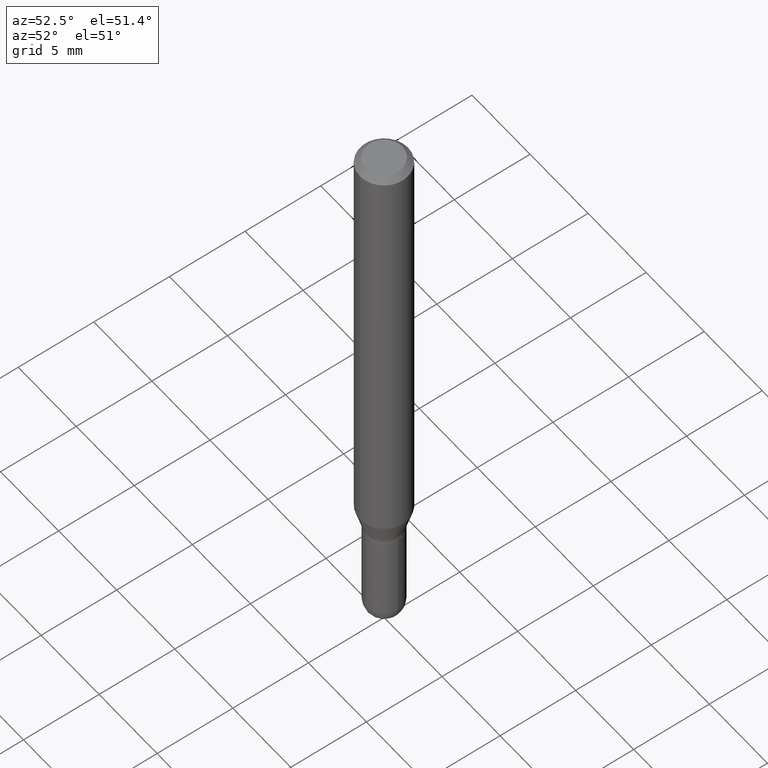
[diagram: clean part render]
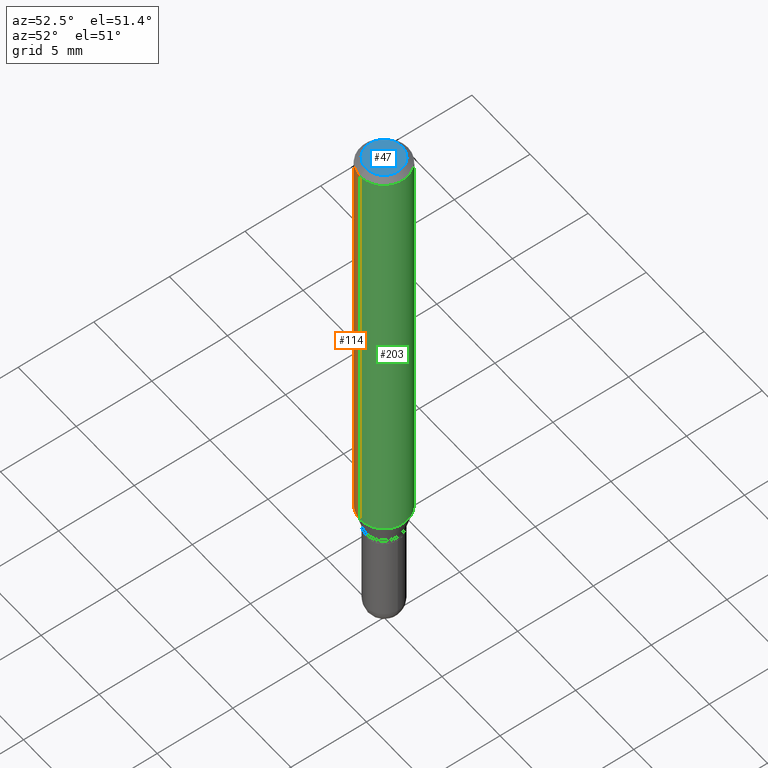
[diagram: same view with three faces highlighted in distinct colors, each labeled with its STEP entity id]
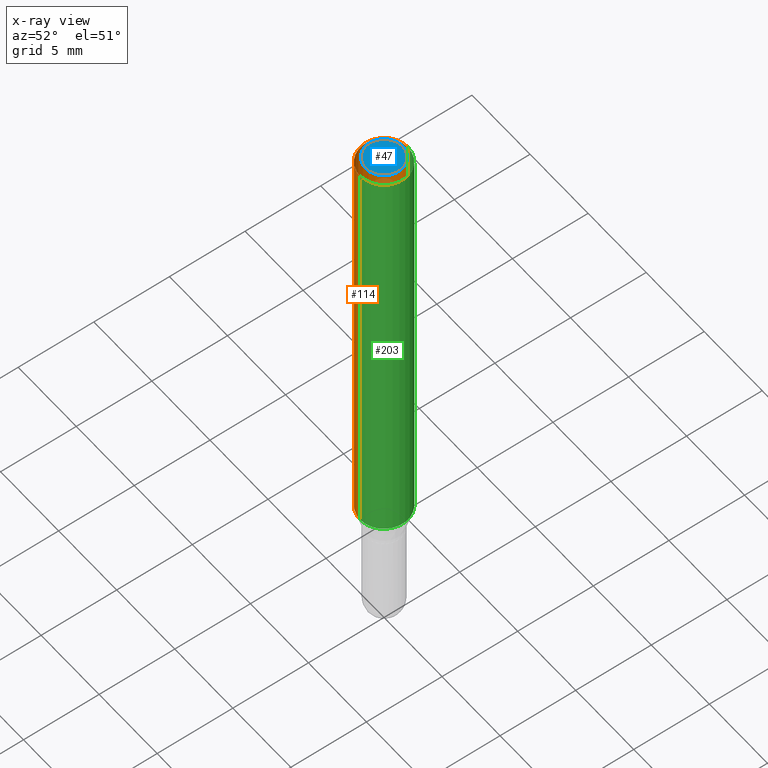
[diagram: x-ray of the same camera — body ghosted, the three highlighted faces saturated]
A machine part, auxiliary view with three faces highlighted in distinct colors.
The next image is the same camera in x-ray (body ghosted, the three faces saturated) — at least one of them is partly hidden behind the body in this view.
Their STEP definitions:

[orange] entity #114 — the highlighted cylindrical surface (edge-blend (fillet) strip) has radius 1.5875 mm, axis along (-0, 0, 1).
#1 = VERTEX_POINT ( 'NONE', #377 ) ;
#19 = ORIENTED_EDGE ( 'NONE', *, *, #40, .F. ) ;
#35 = CARTESIAN_POINT ( 'NONE',  ( 2.815349723061568800E-29, -4.019822575914692345E-15, -1.151287187078898322 ) ) ;
#40 = EDGE_CURVE ( 'NONE', #193, #150, #48, .T. ) ;
#48 = CIRCLE ( 'NONE', #196, 0.06250000000000000000 ) ;
#50 = ORIENTED_EDGE ( 'NONE', *, *, #317, .T. ) ;
#64 = CARTESIAN_POINT ( 'NONE',  ( 4.440892098500625669E-16, 0.06250000000000000000, -2.182243612318172272E-16 ) ) ;
#68 = ORIENTED_EDGE ( 'NONE', *, *, #382, .F. ) ;
#91 = DIRECTION ( 'NONE',  ( -6.982962677686265922E-15, -1.000000000000000000, 4.370956789862821150E-15 ) ) ;
#95 = LINE ( 'NONE', #64, #221 ) ;
#114 = ADVANCED_FACE ( 'NONE', ( #162 ), #126, .T. ) ;
#122 = DIRECTION ( 'NONE',  ( -6.982962677686265922E-15, -1.000000000000000000, 3.491589779709075635E-15 ) ) ;
#126 = CYLINDRICAL_SURFACE ( 'NONE', #220, 0.06250000000000000000 ) ;
#132 = DIRECTION ( 'NONE',  ( -2.445393082333184386E-29, 3.491589779709075635E-15, 1.000000000000000000 ) ) ;
#150 = VERTEX_POINT ( 'NONE', #477 ) ;
#162 = FACE_OUTER_BOUND ( 'NONE', #347, .T. ) ;
#172 = EDGE_CURVE ( 'NONE', #1, #459, #326, .T. ) ;
#193 = VERTEX_POINT ( 'NONE', #285 ) ;
#195 = VECTOR ( 'NONE', #132, 39.37007874015748143 ) ;
#196 = AXIS2_PLACEMENT_3D ( 'NONE', #233, #381, #345 ) ;
#199 = DIRECTION ( 'NONE',  ( -2.445393082333184106E-29, 3.491589779709075635E-15, 1.000000000000000000 ) ) ;
#220 = AXIS2_PLACEMENT_3D ( 'NONE', #280, #512, #122 ) ;
#221 = VECTOR ( 'NONE', #413, 39.37007874015748143 ) ;
#233 = CARTESIAN_POINT ( 'NONE',  ( 3.668089623499778454E-31, -5.237384669563616460E-17, -0.01500000000000000812 ) ) ;
#280 = CARTESIAN_POINT ( 'NONE',  ( 0.000000000000000000, 0.000000000000000000, 0.000000000000000000 ) ) ;
#281 = ORIENTED_EDGE ( 'NONE', *, *, #172, .T. ) ;
#285 = CARTESIAN_POINT ( 'NONE',  ( 4.440892098500909166E-16, 0.06249999999999995143, -0.01500000000000022669 ) ) ;
#317 = EDGE_CURVE ( 'NONE', #459, #150, #420, .T. ) ;
#326 = CIRCLE ( 'NONE', #339, 0.06250000000000000000 ) ;
#339 = AXIS2_PLACEMENT_3D ( 'NONE', #35, #199, #91 ) ;
#345 = DIRECTION ( 'NONE',  ( -6.982962677686265922E-15, -1.000000000000000000, 3.483106191921935554E-15 ) ) ;
#347 = EDGE_LOOP ( 'NONE', ( #68, #281, #50, #19 ) ) ;
#377 = CARTESIAN_POINT ( 'NONE',  ( 4.440892098500906207E-16, 0.06249999999999597544, -1.151287187078898766 ) ) ;
#379 = CARTESIAN_POINT ( 'NONE',  ( -4.364351673553635169E-16, -0.06250000000000402456, -1.151287187078898100 ) ) ;
#381 = DIRECTION ( 'NONE',  ( -2.445393082333184106E-29, 3.491589779709075635E-15, 1.000000000000000000 ) ) ;
#382 = EDGE_CURVE ( 'NONE', #1, #193, #95, .T. ) ;
#413 = DIRECTION ( 'NONE',  ( -2.445393082333184386E-29, 3.491589779709075635E-15, 1.000000000000000000 ) ) ;
#420 = LINE ( 'NONE', #499, #195 ) ;
#459 = VERTEX_POINT ( 'NONE', #379 ) ;
#477 = CARTESIAN_POINT ( 'NONE',  ( -4.364351673553912750E-16, -0.06250000000000005551, -0.01499999999999979128 ) ) ;
#499 = CARTESIAN_POINT ( 'NONE',  ( -4.364351673553916201E-16, -0.06250000000000000000, 2.182243612318172272E-16 ) ) ;
#512 = DIRECTION ( 'NONE',  ( -2.445393082333184106E-29, 3.491589779709075635E-15, 1.000000000000000000 ) ) ;

[blue] entity #47 — the highlighted planar face has unit normal (0, -0, -1).
#3 = CARTESIAN_POINT ( 'NONE',  ( -3.773273898774340269E-16, -0.04749999999999999362, 1.569953458854816609E-16 ) ) ;
#11 = AXIS2_PLACEMENT_3D ( 'NONE', #14, #457, #176 ) ;
#14 = CARTESIAN_POINT ( 'NONE',  ( 2.165436816131405591E-46, -3.091861635838232018E-32, -8.855168650699427931E-18 ) ) ;
#26 = AXIS2_PLACEMENT_3D ( 'NONE', #392, #273, #461 ) ;
#33 = CIRCLE ( 'NONE', #11, 0.04749999999999999362 ) ;
#47 = ADVANCED_FACE ( 'NONE', ( #475 ), #118, .F. ) ;
#56 = CARTESIAN_POINT ( 'NONE',  ( 2.165436816131405591E-46, -3.091861635838232018E-32, -8.855168650699427931E-18 ) ) ;
#96 = CARTESIAN_POINT ( 'NONE',  ( 3.840629472727447874E-16, 0.04749999999999999362, -1.747056831868805136E-16 ) ) ;
#118 = PLANE ( 'NONE',  #26 ) ;
#176 = DIRECTION ( 'NONE',  ( -6.982962677686266711E-15, -1.000000000000000000, 3.491589779709075635E-15 ) ) ;
#186 = CIRCLE ( 'NONE', #342, 0.04749999999999999362 ) ;
#224 = VERTEX_POINT ( 'NONE', #3 ) ;
#226 = VERTEX_POINT ( 'NONE', #96 ) ;
#247 = EDGE_LOOP ( 'NONE', ( #482, #303 ) ) ;
#273 = DIRECTION ( 'NONE',  ( 2.445393082333183826E-29, -3.491589779709075635E-15, -1.000000000000000000 ) ) ;
#301 = EDGE_CURVE ( 'NONE', #226, #224, #33, .T. ) ;
#303 = ORIENTED_EDGE ( 'NONE', *, *, #354, .T. ) ;
#342 = AXIS2_PLACEMENT_3D ( 'NONE', #56, #416, #453 ) ;
#354 = EDGE_CURVE ( 'NONE', #224, #226, #186, .T. ) ;
#392 = CARTESIAN_POINT ( 'NONE',  ( 3.316907271900976096E-16, 0.04749999999999999362, -1.702780988615308066E-16 ) ) ;
#416 = DIRECTION ( 'NONE',  ( -2.445393082333184106E-29, 3.491589779709075635E-15, 1.000000000000000000 ) ) ;
#453 = DIRECTION ( 'NONE',  ( -6.982962677686266711E-15, -1.000000000000000000, 3.491589779709075635E-15 ) ) ;
#457 = DIRECTION ( 'NONE',  ( -2.445393082333184106E-29, 3.491589779709075635E-15, 1.000000000000000000 ) ) ;
#461 = DIRECTION ( 'NONE',  ( 6.982962677686265922E-15, 1.000000000000000000, -3.491589779709075635E-15 ) ) ;
#475 = FACE_OUTER_BOUND ( 'NONE', #247, .T. ) ;
#482 = ORIENTED_EDGE ( 'NONE', *, *, #301, .T. ) ;

[green] entity #203 — the highlighted cylindrical surface (edge-blend (fillet) strip) has radius 1.5875 mm, axis along (-0, 0, 1).
#1 = VERTEX_POINT ( 'NONE', #377 ) ;
#6 = CARTESIAN_POINT ( 'NONE',  ( 2.815349723061568800E-29, -4.019822575914692345E-15, -1.151287187078898322 ) ) ;
#12 = DIRECTION ( 'NONE',  ( -6.982962677686265922E-15, -1.000000000000000000, 3.483106191921935554E-15 ) ) ;
#43 = DIRECTION ( 'NONE',  ( -6.982962677686265922E-15, -1.000000000000000000, 3.491589779709075635E-15 ) ) ;
#64 = CARTESIAN_POINT ( 'NONE',  ( 4.440892098500625669E-16, 0.06250000000000000000, -2.182243612318172272E-16 ) ) ;
#95 = LINE ( 'NONE', #64, #221 ) ;
#110 = ORIENTED_EDGE ( 'NONE', *, *, #376, .F. ) ;
#132 = DIRECTION ( 'NONE',  ( -2.445393082333184386E-29, 3.491589779709075635E-15, 1.000000000000000000 ) ) ;
#134 = CARTESIAN_POINT ( 'NONE',  ( 3.668089623499778454E-31, -5.237384669563616460E-17, -0.01500000000000000812 ) ) ;
#150 = VERTEX_POINT ( 'NONE', #477 ) ;
#166 = CARTESIAN_POINT ( 'NONE',  ( 0.000000000000000000, 0.000000000000000000, 0.000000000000000000 ) ) ;
#168 = DIRECTION ( 'NONE',  ( -6.982962677686265922E-15, -1.000000000000000000, 4.370956789862821150E-15 ) ) ;
#180 = EDGE_CURVE ( 'NONE', #459, #1, #491, .T. ) ;
#193 = VERTEX_POINT ( 'NONE', #285 ) ;
#195 = VECTOR ( 'NONE', #132, 39.37007874015748143 ) ;
#203 = ADVANCED_FACE ( 'NONE', ( #275 ), #451, .T. ) ;
#221 = VECTOR ( 'NONE', #413, 39.37007874015748143 ) ;
#227 = AXIS2_PLACEMENT_3D ( 'NONE', #166, #362, #43 ) ;
#252 = DIRECTION ( 'NONE',  ( -2.445393082333184106E-29, 3.491589779709075635E-15, 1.000000000000000000 ) ) ;
#275 = FACE_OUTER_BOUND ( 'NONE', #361, .T. ) ;
#285 = CARTESIAN_POINT ( 'NONE',  ( 4.440892098500909166E-16, 0.06249999999999995143, -0.01500000000000022669 ) ) ;
#315 = DIRECTION ( 'NONE',  ( -2.445393082333184106E-29, 3.491589779709075635E-15, 1.000000000000000000 ) ) ;
#317 = EDGE_CURVE ( 'NONE', #459, #150, #420, .T. ) ;
#361 = EDGE_LOOP ( 'NONE', ( #415, #367, #110, #385 ) ) ;
#362 = DIRECTION ( 'NONE',  ( -2.445393082333184106E-29, 3.491589779709075635E-15, 1.000000000000000000 ) ) ;
#365 = AXIS2_PLACEMENT_3D ( 'NONE', #134, #252, #12 ) ;
#367 = ORIENTED_EDGE ( 'NONE', *, *, #382, .T. ) ;
#376 = EDGE_CURVE ( 'NONE', #150, #193, #498, .T. ) ;
#377 = CARTESIAN_POINT ( 'NONE',  ( 4.440892098500906207E-16, 0.06249999999999597544, -1.151287187078898766 ) ) ;
#379 = CARTESIAN_POINT ( 'NONE',  ( -4.364351673553635169E-16, -0.06250000000000402456, -1.151287187078898100 ) ) ;
#382 = EDGE_CURVE ( 'NONE', #1, #193, #95, .T. ) ;
#385 = ORIENTED_EDGE ( 'NONE', *, *, #317, .F. ) ;
#413 = DIRECTION ( 'NONE',  ( -2.445393082333184386E-29, 3.491589779709075635E-15, 1.000000000000000000 ) ) ;
#415 = ORIENTED_EDGE ( 'NONE', *, *, #180, .T. ) ;
#420 = LINE ( 'NONE', #499, #195 ) ;
#451 = CYLINDRICAL_SURFACE ( 'NONE', #227, 0.06250000000000000000 ) ;
#455 = AXIS2_PLACEMENT_3D ( 'NONE', #6, #315, #168 ) ;
#459 = VERTEX_POINT ( 'NONE', #379 ) ;
#477 = CARTESIAN_POINT ( 'NONE',  ( -4.364351673553912750E-16, -0.06250000000000005551, -0.01499999999999979128 ) ) ;
#491 = CIRCLE ( 'NONE', #455, 0.06250000000000000000 ) ;
#498 = CIRCLE ( 'NONE', #365, 0.06250000000000000000 ) ;
#499 = CARTESIAN_POINT ( 'NONE',  ( -4.364351673553916201E-16, -0.06250000000000000000, 2.182243612318172272E-16 ) ) ;